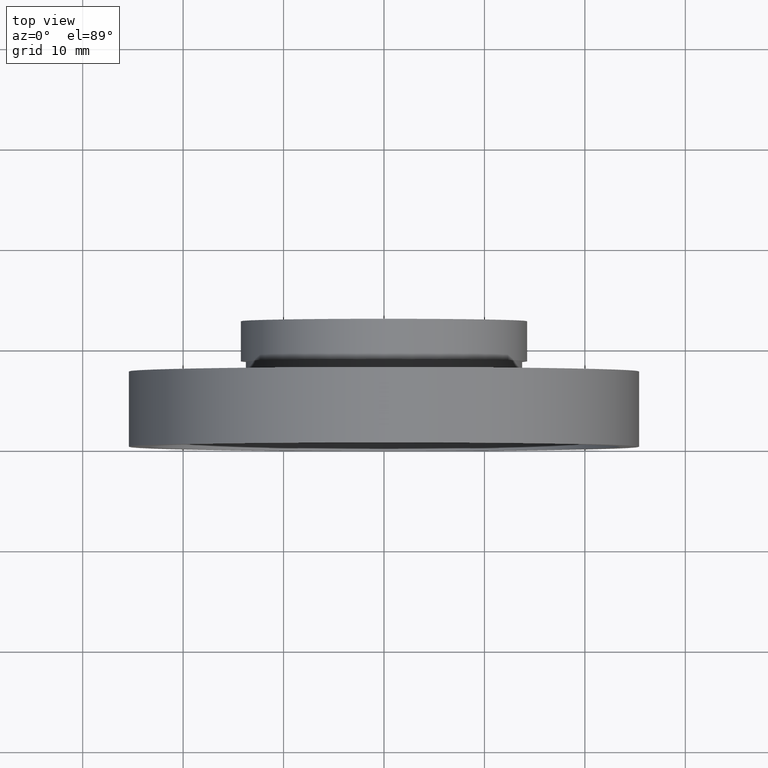
[diagram: clean part render]
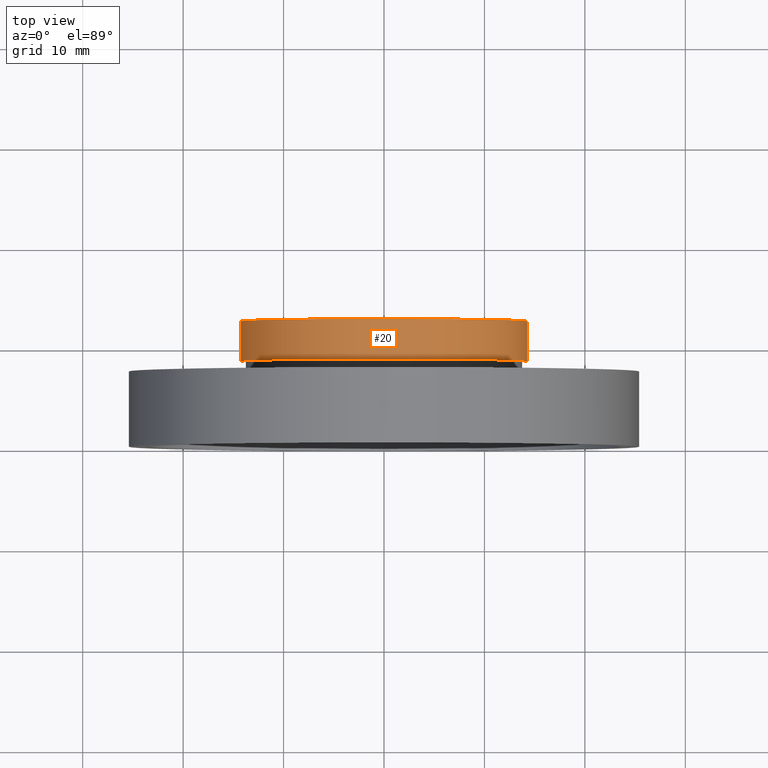
[diagram: same view with one face highlighted and labeled with its STEP entity id]
A machine part, top view. The second image highlights one B-rep face of the part: STEP entity #20.
In plain terms, the highlighted cylindrical surface (partial cylindrical patch) has radius 14.25 mm, axis along (-0, 1, -0).
Its self-contained STEP definition (entity closure, byte-faithful):
#20 = ADVANCED_FACE ( 'NONE', ( #37 ), #322, .T. ) ;
#37 = FACE_OUTER_BOUND ( 'NONE', #486, .T. ) ;
#58 = DIRECTION ( 'NONE',  ( -1.224646799147351000E-016, 1.000000000000000000, -0.0000000000000000000 ) ) ;
#71 = EDGE_CURVE ( 'NONE', #138, #269, #476, .T. ) ;
#100 = EDGE_CURVE ( 'NONE', #115, #417, #576, .T. ) ;
#113 = VECTOR ( 'NONE', #515, 1000.000000000000000 ) ;
#115 = VERTEX_POINT ( 'NONE', #594 ) ;
#117 = EDGE_CURVE ( 'NONE', #417, #269, #208, .T. ) ;
#138 = VERTEX_POINT ( 'NONE', #421 ) ;
#159 = EDGE_CURVE ( 'NONE', #115, #138, #624, .T. ) ;
#163 = VECTOR ( 'NONE', #470, 1000.000000000000000 ) ;
#202 = CARTESIAN_POINT ( 'NONE',  ( -14.25000000000000200, 12.49999999999999500, 0.0000000000000000000 ) ) ;
#208 = CIRCLE ( 'NONE', #571, 14.25000000000000200 ) ;
#267 = ORIENTED_EDGE ( 'NONE', *, *, #100, .F. ) ;
#269 = VERTEX_POINT ( 'NONE', #295 ) ;
#284 = CARTESIAN_POINT ( 'NONE',  ( 0.0000000000000000000, 16.88601823708207700, 0.0000000000000000000 ) ) ;
#290 = CARTESIAN_POINT ( 'NONE',  ( 1.026991039163387700E-015, 8.499999999999998200, 0.0000000000000000000 ) ) ;
#295 = CARTESIAN_POINT ( 'NONE',  ( 14.25000000000000200, 12.49999999999999800, 1.745121688784978600E-015 ) ) ;
#303 = ORIENTED_EDGE ( 'NONE', *, *, #159, .T. ) ;
#309 = AXIS2_PLACEMENT_3D ( 'NONE', #284, #617, #344 ) ;
#312 = DIRECTION ( 'NONE',  ( -1.000000000000000000, -1.217349807703022400E-016, 0.0000000000000000000 ) ) ;
#322 = CYLINDRICAL_SURFACE ( 'NONE', #309, 14.25000000000000200 ) ;
#344 = DIRECTION ( 'NONE',  ( -1.000000000000000000, -2.434699615406044700E-016, 0.0000000000000000000 ) ) ;
#347 = DIRECTION ( 'NONE',  ( -1.224646799147351000E-016, 1.000000000000000000, -0.0000000000000000000 ) ) ;
#417 = VERTEX_POINT ( 'NONE', #202 ) ;
#421 = CARTESIAN_POINT ( 'NONE',  ( 14.25000000000000500, 8.500000000000000000, 1.745121688784979000E-015 ) ) ;
#429 = CARTESIAN_POINT ( 'NONE',  ( 14.25000000000000200, 16.88601823708208000, 1.745121688784978600E-015 ) ) ;
#456 = CARTESIAN_POINT ( 'NONE',  ( -14.25000000000000200, 16.88601823708207300, 0.0000000000000000000 ) ) ;
#470 = DIRECTION ( 'NONE',  ( -1.224646799147351000E-016, 1.000000000000000000, -0.0000000000000000000 ) ) ;
#476 = LINE ( 'NONE', #429, #113 ) ;
#486 = EDGE_LOOP ( 'NONE', ( #303, #556, #514, #267 ) ) ;
#489 = CARTESIAN_POINT ( 'NONE',  ( 5.371323195044474300E-016, 12.49999999999999600, 0.0000000000000000000 ) ) ;
#514 = ORIENTED_EDGE ( 'NONE', *, *, #117, .F. ) ;
#515 = DIRECTION ( 'NONE',  ( -1.224646799147351000E-016, 1.000000000000000000, -0.0000000000000000000 ) ) ;
#541 = DIRECTION ( 'NONE',  ( -1.000000000000000000, -1.217349807703022400E-016, 0.0000000000000000000 ) ) ;
#556 = ORIENTED_EDGE ( 'NONE', *, *, #71, .T. ) ;
#571 = AXIS2_PLACEMENT_3D ( 'NONE', #489, #58, #541 ) ;
#573 = AXIS2_PLACEMENT_3D ( 'NONE', #290, #347, #312 ) ;
#576 = LINE ( 'NONE', #456, #163 ) ;
#594 = CARTESIAN_POINT ( 'NONE',  ( -14.25000000000000000, 8.499999999999996400, 0.0000000000000000000 ) ) ;
#617 = DIRECTION ( 'NONE',  ( -1.224646799147351000E-016, 1.000000000000000000, -0.0000000000000000000 ) ) ;
#624 = CIRCLE ( 'NONE', #573, 14.25000000000000200 ) ;